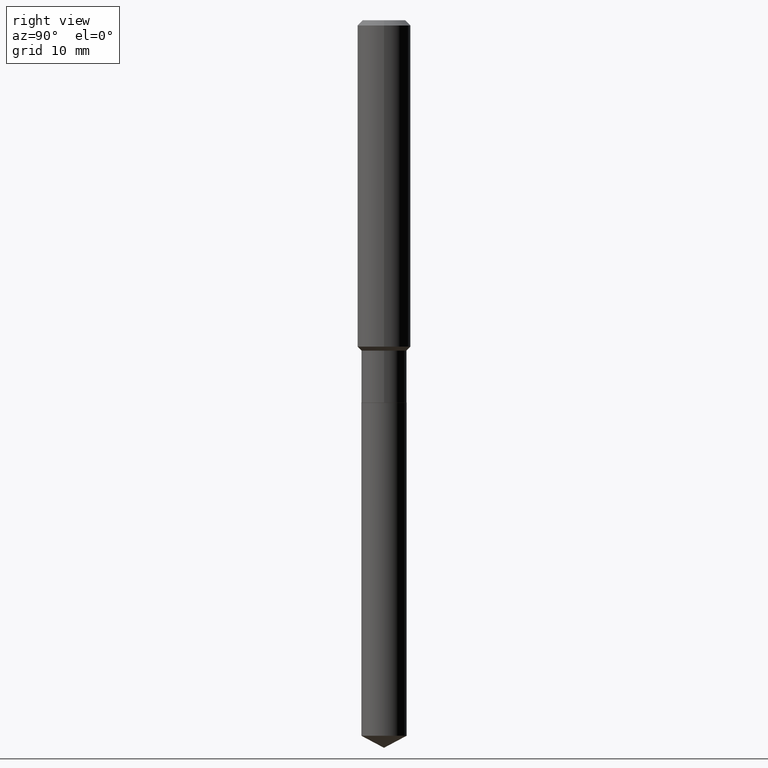
[diagram: clean part render]
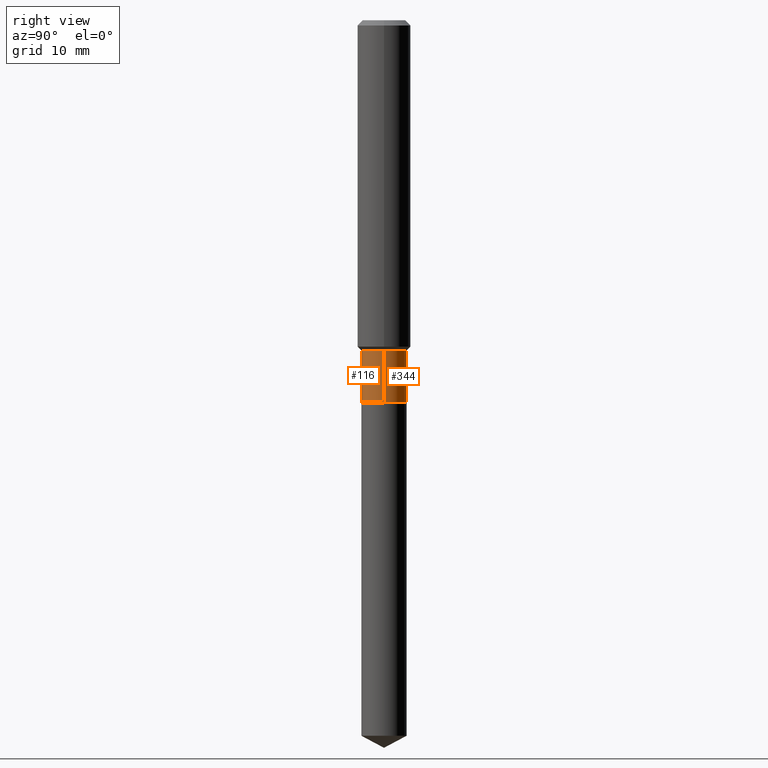
[diagram: same view with one multi-face feature highlighted, each face labeled with its STEP entity id]
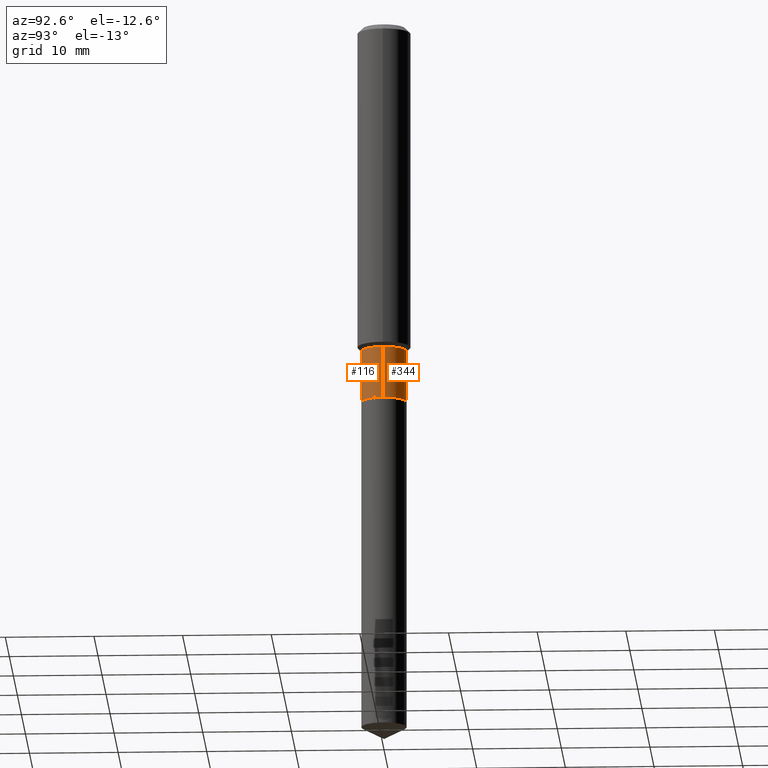
[diagram: same view with one multi-face feature highlighted, each face labeled with its STEP entity id]
A machine part, right view. The highlighted faces form ONE feature: a constant-radius fillet chain: 2 tangent blend faces with common blend radius 2.5502 mm. The faces share edges in the B-rep.
A second angle (auxiliary view) of the same feature is appended — it is thin or edge-on in the first view.
Their STEP definitions:
[1] entity #116 (Cylinder):
#3 = EDGE_CURVE ( 'NONE', #124, #419, #349, .T. ) ;
#15 = CARTESIAN_POINT ( 'NONE',  ( -0.1004000000000000031, -4.806996238141757773E-15, -1.696300000000000363 ) ) ;
#18 = DIRECTION ( 'NONE',  ( 1.000000000000000000, -6.982962677686266711E-15, 4.876176775795935232E-29 ) ) ;
#19 = DIRECTION ( 'NONE',  ( -2.445468806185136597E-29, 3.491481338843145583E-15, 1.000000000000000000 ) ) ;
#30 = LINE ( 'NONE', #191, #445 ) ;
#72 = CIRCLE ( 'NONE', #217, 0.1003999999999999754 ) ;
#94 = EDGE_CURVE ( 'NONE', #124, #278, #272, .T. ) ;
#101 = CARTESIAN_POINT ( 'NONE',  ( 0.1003999999999999754, -5.819251947449867977E-15, -1.465899999999999981 ) ) ;
#111 = ORIENTED_EDGE ( 'NONE', *, *, #3, .F. ) ;
#116 = ADVANCED_FACE ( 'NONE', ( #285 ), #133, .T. ) ;
#122 = DIRECTION ( 'NONE',  ( -2.445468806185136597E-29, 3.491481338843145583E-15, 1.000000000000000000 ) ) ;
#124 = VERTEX_POINT ( 'NONE', #15 ) ;
#133 = CYLINDRICAL_SURFACE ( 'NONE', #185, 0.1003999999999999893 ) ;
#136 = DIRECTION ( 'NONE',  ( -2.445468806185136597E-29, 3.491481338843145583E-15, 1.000000000000000000 ) ) ;
#155 = CARTESIAN_POINT ( 'NONE',  ( 3.584812722986791865E-29, -5.118162494610166900E-15, -1.465899999999999981 ) ) ;
#169 = ORIENTED_EDGE ( 'NONE', *, *, #94, .T. ) ;
#185 = AXIS2_PLACEMENT_3D ( 'NONE', #395, #136, #18 ) ;
#191 = CARTESIAN_POINT ( 'NONE',  ( 0.1003999999999999893, -7.010894528397010768E-16, 4.895681482899118454E-30 ) ) ;
#217 = AXIS2_PLACEMENT_3D ( 'NONE', #155, #122, #420 ) ;
#219 = CARTESIAN_POINT ( 'NONE',  ( 0.1004000000000000031, -6.623689247919329954E-15, -1.696300000000000363 ) ) ;
#221 = VERTEX_POINT ( 'NONE', #101 ) ;
#229 = EDGE_LOOP ( 'NONE', ( #111, #169, #404, #354 ) ) ;
#230 = VECTOR ( 'NONE', #268, 39.37007874015748143 ) ;
#232 = CARTESIAN_POINT ( 'NONE',  ( -0.1003999999999999754, -4.806996238141757773E-15, -1.465899999999999981 ) ) ;
#253 = CARTESIAN_POINT ( 'NONE',  ( 4.148248735931848062E-29, -5.922599795079628877E-15, -1.696300000000000363 ) ) ;
#268 = DIRECTION ( 'NONE',  ( -2.445468806185136877E-29, 3.491481338843145188E-15, 1.000000000000000000 ) ) ;
#272 = CIRCLE ( 'NONE', #335, 0.1004000000000000031 ) ;
#278 = VERTEX_POINT ( 'NONE', #219 ) ;
#285 = FACE_OUTER_BOUND ( 'NONE', #229, .T. ) ;
#288 = EDGE_CURVE ( 'NONE', #278, #221, #30, .T. ) ;
#335 = AXIS2_PLACEMENT_3D ( 'NONE', #253, #19, #399 ) ;
#349 = LINE ( 'NONE', #458, #230 ) ;
#354 = ORIENTED_EDGE ( 'NONE', *, *, #384, .F. ) ;
#384 = EDGE_CURVE ( 'NONE', #419, #221, #72, .T. ) ;
#395 = CARTESIAN_POINT ( 'NONE',  ( 0.000000000000000000, 0.000000000000000000, 0.000000000000000000 ) ) ;
#399 = DIRECTION ( 'NONE',  ( 1.000000000000000000, -6.982962677686262766E-15, 0.000000000000000000 ) ) ;
#404 = ORIENTED_EDGE ( 'NONE', *, *, #288, .T. ) ;
#419 = VERTEX_POINT ( 'NONE', #232 ) ;
#420 = DIRECTION ( 'NONE',  ( 1.000000000000000000, -6.982962677686264344E-15, 0.000000000000000000 ) ) ;
#440 = DIRECTION ( 'NONE',  ( -2.445468806185136877E-29, 3.491481338843145188E-15, 1.000000000000000000 ) ) ;
#445 = VECTOR ( 'NONE', #440, 39.37007874015748143 ) ;
#458 = CARTESIAN_POINT ( 'NONE',  ( -0.1003999999999999893, 7.133849067031405103E-16, -4.938610830615924293E-30 ) ) ;
[2] entity #344 (Cylinder):
#3 = EDGE_CURVE ( 'NONE', #124, #419, #349, .T. ) ;
#15 = CARTESIAN_POINT ( 'NONE',  ( -0.1004000000000000031, -4.806996238141757773E-15, -1.696300000000000363 ) ) ;
#25 = DIRECTION ( 'NONE',  ( -2.445468806185136597E-29, 3.491481338843145583E-15, 1.000000000000000000 ) ) ;
#30 = LINE ( 'NONE', #191, #445 ) ;
#101 = CARTESIAN_POINT ( 'NONE',  ( 0.1003999999999999754, -5.819251947449867977E-15, -1.465899999999999981 ) ) ;
#109 = ORIENTED_EDGE ( 'NONE', *, *, #371, .F. ) ;
#124 = VERTEX_POINT ( 'NONE', #15 ) ;
#125 = ORIENTED_EDGE ( 'NONE', *, *, #206, .T. ) ;
#150 = FACE_OUTER_BOUND ( 'NONE', #154, .T. ) ;
#153 = CARTESIAN_POINT ( 'NONE',  ( 3.584812722986791865E-29, -5.118162494610166900E-15, -1.465899999999999981 ) ) ;
#154 = EDGE_LOOP ( 'NONE', ( #125, #347, #109, #417 ) ) ;
#179 = CIRCLE ( 'NONE', #282, 0.1004000000000000031 ) ;
#191 = CARTESIAN_POINT ( 'NONE',  ( 0.1003999999999999893, -7.010894528397010768E-16, 4.895681482899118454E-30 ) ) ;
#206 = EDGE_CURVE ( 'NONE', #278, #124, #179, .T. ) ;
#219 = CARTESIAN_POINT ( 'NONE',  ( 0.1004000000000000031, -6.623689247919329954E-15, -1.696300000000000363 ) ) ;
#221 = VERTEX_POINT ( 'NONE', #101 ) ;
#230 = VECTOR ( 'NONE', #268, 39.37007874015748143 ) ;
#232 = CARTESIAN_POINT ( 'NONE',  ( -0.1003999999999999754, -4.806996238141757773E-15, -1.465899999999999981 ) ) ;
#268 = DIRECTION ( 'NONE',  ( -2.445468806185136877E-29, 3.491481338843145188E-15, 1.000000000000000000 ) ) ;
#273 = AXIS2_PLACEMENT_3D ( 'NONE', #153, #474, #304 ) ;
#278 = VERTEX_POINT ( 'NONE', #219 ) ;
#282 = AXIS2_PLACEMENT_3D ( 'NONE', #360, #287, #468 ) ;
#287 = DIRECTION ( 'NONE',  ( -2.445468806185136597E-29, 3.491481338843145583E-15, 1.000000000000000000 ) ) ;
#288 = EDGE_CURVE ( 'NONE', #278, #221, #30, .T. ) ;
#292 = CIRCLE ( 'NONE', #273, 0.1003999999999999754 ) ;
#300 = AXIS2_PLACEMENT_3D ( 'NONE', #375, #25, #402 ) ;
#304 = DIRECTION ( 'NONE',  ( 1.000000000000000000, -6.982962677686264344E-15, 0.000000000000000000 ) ) ;
#344 = ADVANCED_FACE ( 'NONE', ( #150 ), #412, .T. ) ;
#347 = ORIENTED_EDGE ( 'NONE', *, *, #3, .T. ) ;
#349 = LINE ( 'NONE', #458, #230 ) ;
#360 = CARTESIAN_POINT ( 'NONE',  ( 4.148248735931848062E-29, -5.922599795079628877E-15, -1.696300000000000363 ) ) ;
#371 = EDGE_CURVE ( 'NONE', #221, #419, #292, .T. ) ;
#375 = CARTESIAN_POINT ( 'NONE',  ( 0.000000000000000000, 0.000000000000000000, 0.000000000000000000 ) ) ;
#402 = DIRECTION ( 'NONE',  ( 1.000000000000000000, -6.982962677686266711E-15, 4.876176775795935232E-29 ) ) ;
#412 = CYLINDRICAL_SURFACE ( 'NONE', #300, 0.1003999999999999893 ) ;
#417 = ORIENTED_EDGE ( 'NONE', *, *, #288, .F. ) ;
#419 = VERTEX_POINT ( 'NONE', #232 ) ;
#440 = DIRECTION ( 'NONE',  ( -2.445468806185136877E-29, 3.491481338843145188E-15, 1.000000000000000000 ) ) ;
#445 = VECTOR ( 'NONE', #440, 39.37007874015748143 ) ;
#458 = CARTESIAN_POINT ( 'NONE',  ( -0.1003999999999999893, 7.133849067031405103E-16, -4.938610830615924293E-30 ) ) ;
#468 = DIRECTION ( 'NONE',  ( 1.000000000000000000, -6.982962677686262766E-15, 0.000000000000000000 ) ) ;
#474 = DIRECTION ( 'NONE',  ( -2.445468806185136597E-29, 3.491481338843145583E-15, 1.000000000000000000 ) ) ;